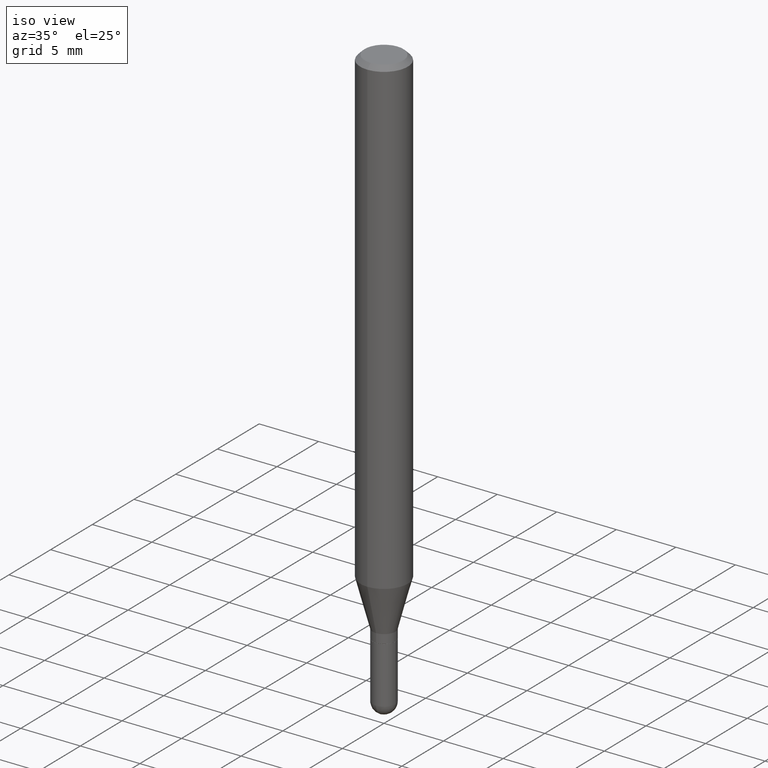
[diagram: clean part render]
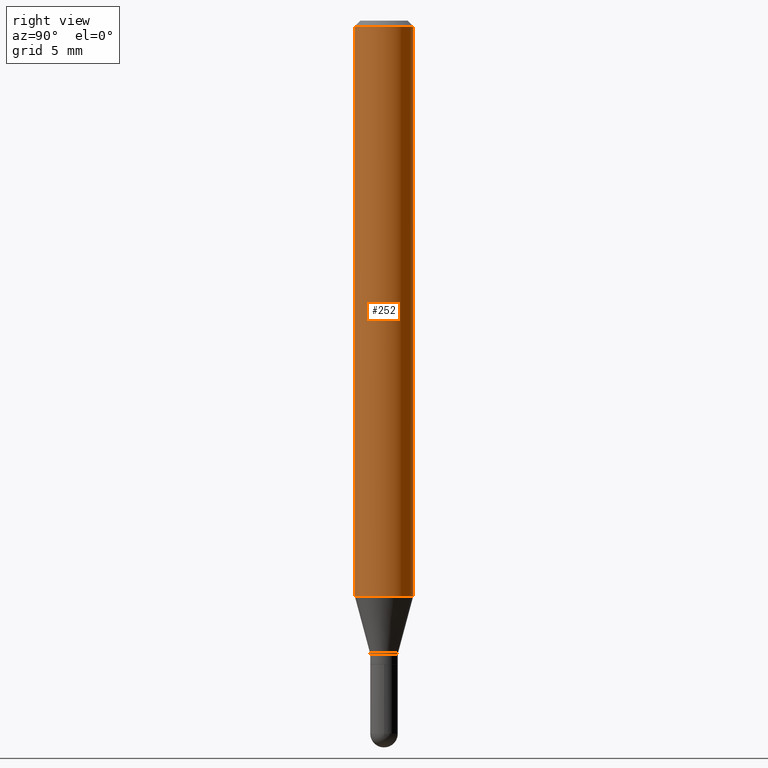
[diagram: tour spotlight — one face highlighted and labeled with its STEP entity id]
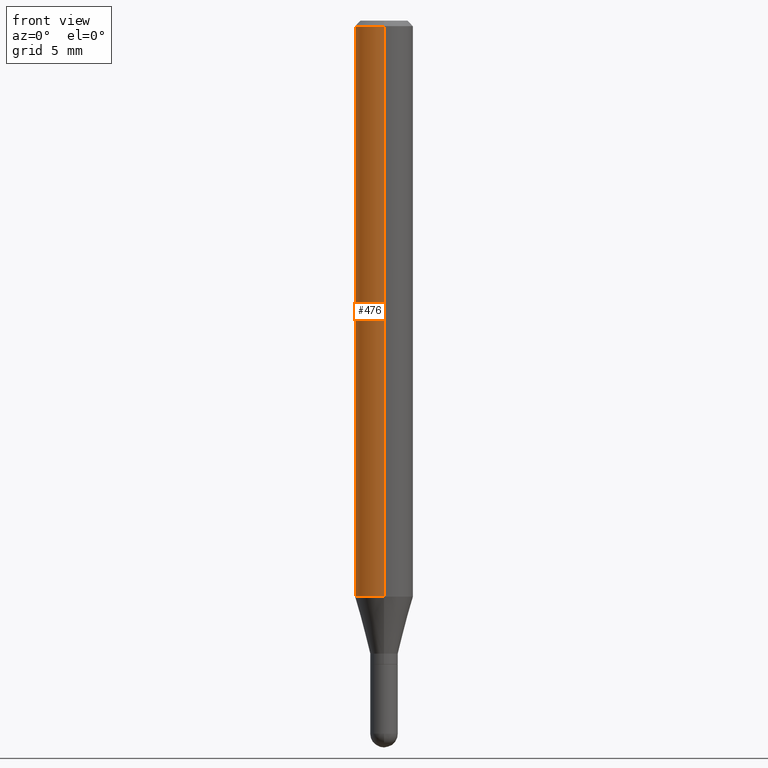
[diagram: tour spotlight — one face highlighted and labeled with its STEP entity id]
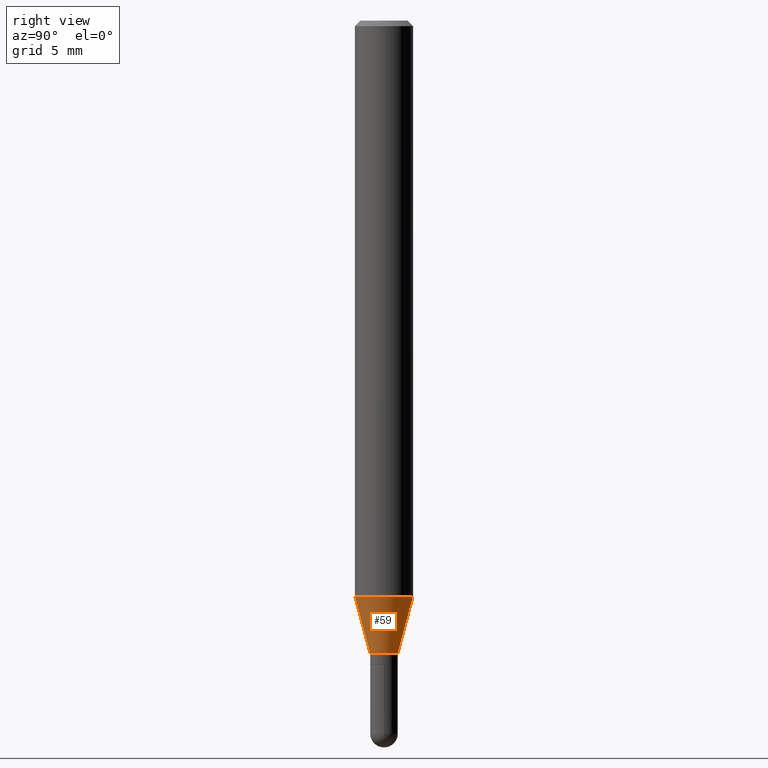
[diagram: tour spotlight — one face highlighted and labeled with its STEP entity id]
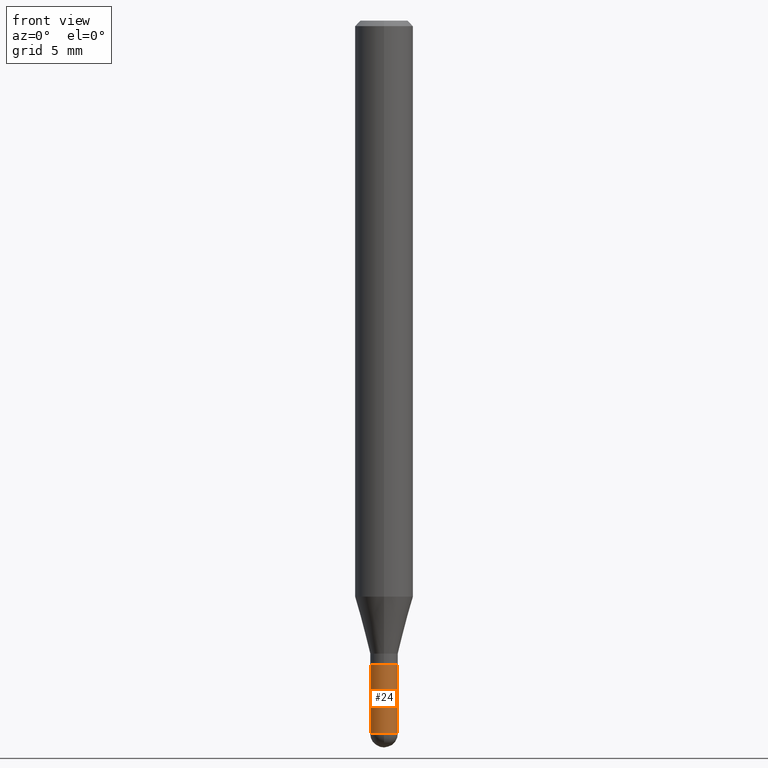
[diagram: tour spotlight — one face highlighted and labeled with its STEP entity id]
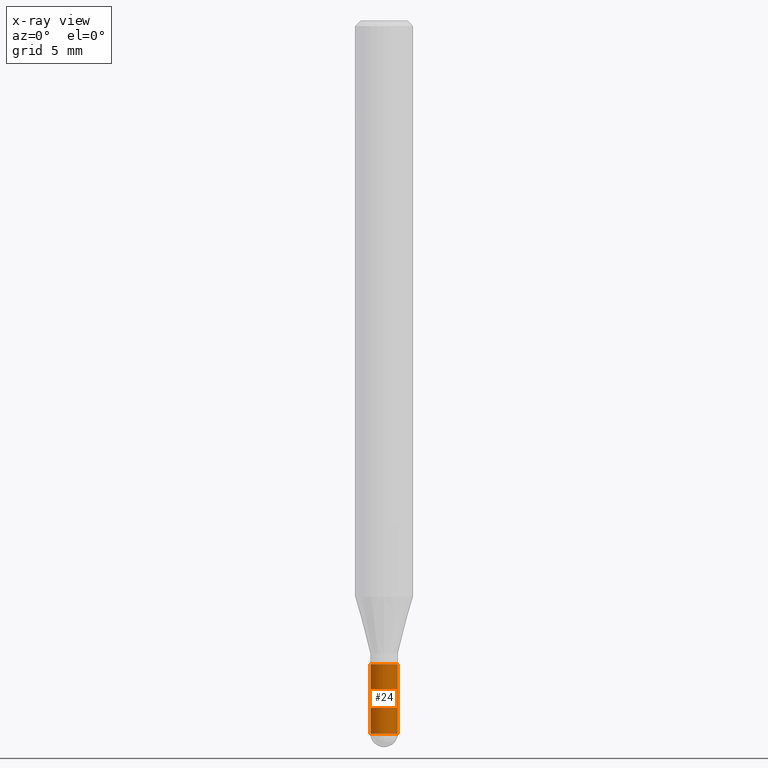
[diagram: x-ray of the same camera — body ghosted, this tour face saturated]
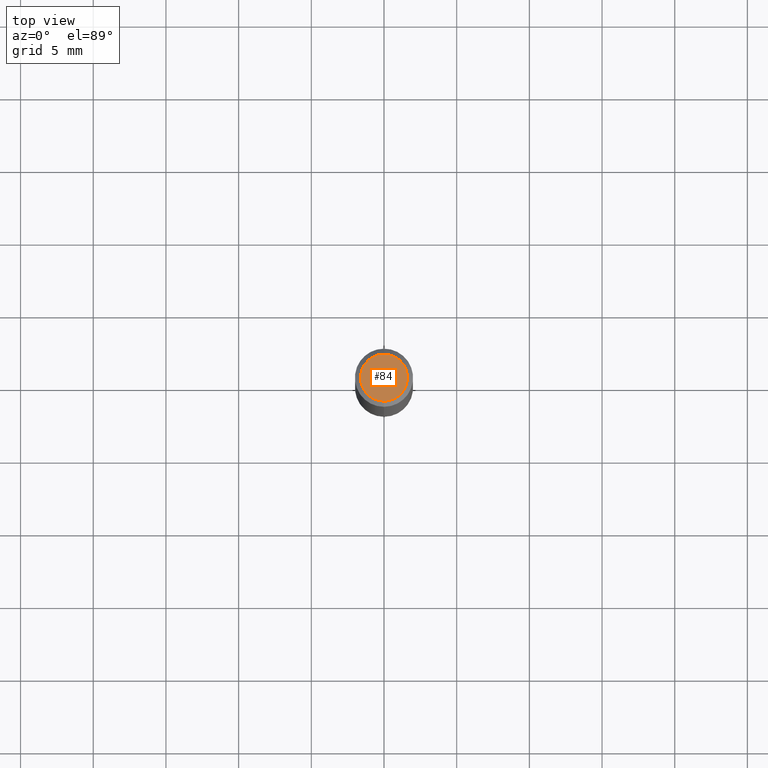
[diagram: tour spotlight — one face highlighted and labeled with its STEP entity id]
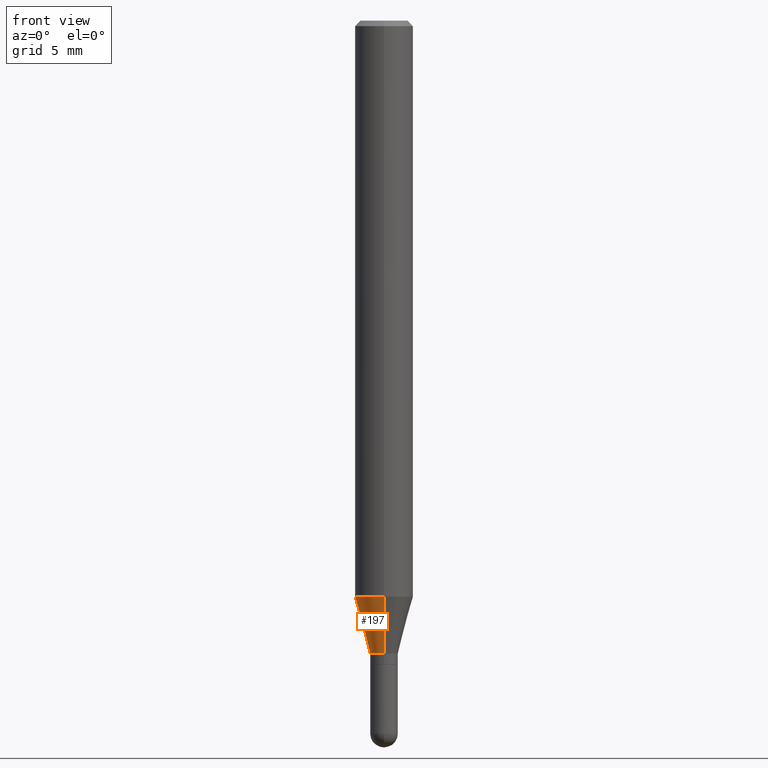
[diagram: tour spotlight — one face highlighted and labeled with its STEP entity id]
A machine part: a face-by-face anatomy tour. The part has 17 B-rep faces; the first image is the clean iso view, then the 6 largest visible faces are spotlighted one at a time (largest first), each with its STEP entity span.

Face 1 — right view, entity #252. In plain terms, the highlighted cylindrical surface (edge-blend (fillet) strip) has radius 2.0002 mm, axis along (-0, 0, 1).
Definition (entity closure, byte-faithful):
#8 = EDGE_CURVE ( 'NONE', #507, #81, #408, .T. ) ;
#20 = ORIENTED_EDGE ( 'NONE', *, *, #8, .F. ) ;
#21 = DIRECTION ( 'NONE',  ( -2.445448542829989062E-29, 3.491510357121035308E-15, 1.000000000000000000 ) ) ;
#57 = DIRECTION ( 'NONE',  ( -2.445448542829989062E-29, 3.491510357121035308E-15, 1.000000000000000000 ) ) ;
#76 = CARTESIAN_POINT ( 'NONE',  ( -5.499083108677930499E-16, -0.07875000000000004219, -0.01499999999999974097 ) ) ;
#81 = VERTEX_POINT ( 'NONE', #345 ) ;
#93 = AXIS2_PLACEMENT_3D ( 'NONE', #356, #57, #101 ) ;
#95 = CARTESIAN_POINT ( 'NONE',  ( 5.595524044110787031E-16, 0.07875000000000000056, -2.749564406232815009E-16 ) ) ;
#100 = DIRECTION ( 'NONE',  ( -2.445448542829989062E-29, 3.491510357121035308E-15, 1.000000000000000000 ) ) ;
#101 = DIRECTION ( 'NONE',  ( -6.982962677686264344E-15, -1.000000000000000000, 3.491510357121034914E-15 ) ) ;
#119 = ORIENTED_EDGE ( 'NONE', *, *, #338, .T. ) ;
#140 = VERTEX_POINT ( 'NONE', #204 ) ;
#144 = AXIS2_PLACEMENT_3D ( 'NONE', #406, #21, #399 ) ;
#148 = LINE ( 'NONE', #95, #407 ) ;
#149 = ORIENTED_EDGE ( 'NONE', *, *, #456, .F. ) ;
#152 = DIRECTION ( 'NONE',  ( -2.445448542829989062E-29, 3.491510357121035308E-15, 1.000000000000000000 ) ) ;
#181 = CYLINDRICAL_SURFACE ( 'NONE', #93, 0.07875000000000000056 ) ;
#185 = CARTESIAN_POINT ( 'NONE',  ( 3.815339171734212769E-29, -5.447383578402168473E-15, -1.560179699107028028 ) ) ;
#188 = DIRECTION ( 'NONE',  ( -6.982962677686264344E-15, -1.000000000000000000, 3.469013325287953293E-15 ) ) ;
#191 = CARTESIAN_POINT ( 'NONE',  ( -5.499083108677933457E-16, -0.07875000000000000056, 2.749564406232815009E-16 ) ) ;
#192 = VERTEX_POINT ( 'NONE', #384 ) ;
#204 = CARTESIAN_POINT ( 'NONE',  ( -5.499083108677556776E-16, -0.07875000000000548228, -1.560179699107027806 ) ) ;
#207 = AXIS2_PLACEMENT_3D ( 'NONE', #185, #152, #188 ) ;
#223 = DIRECTION ( 'NONE',  ( -2.445448542829989062E-29, 3.491510357121035308E-15, 1.000000000000000000 ) ) ;
#230 = LINE ( 'NONE', #191, #474 ) ;
#236 = EDGE_LOOP ( 'NONE', ( #411, #119, #20, #149 ) ) ;
#249 = FACE_OUTER_BOUND ( 'NONE', #236, .T. ) ;
#252 = ADVANCED_FACE ( 'NONE', ( #249 ), #181, .T. ) ;
#262 = EDGE_CURVE ( 'NONE', #140, #192, #468, .T. ) ;
#338 = EDGE_CURVE ( 'NONE', #192, #81, #148, .T. ) ;
#345 = CARTESIAN_POINT ( 'NONE',  ( 5.595524044111170615E-16, 0.07874999999999994504, -0.01500000000000029261 ) ) ;
#356 = CARTESIAN_POINT ( 'NONE',  ( 0.000000000000000000, 0.000000000000000000, 0.000000000000000000 ) ) ;
#384 = CARTESIAN_POINT ( 'NONE',  ( 5.595524044111165684E-16, 0.07874999999999451883, -1.560179699107028473 ) ) ;
#399 = DIRECTION ( 'NONE',  ( -6.982962677686264344E-15, -1.000000000000000000, 3.496114991891765576E-15 ) ) ;
#406 = CARTESIAN_POINT ( 'NONE',  ( 3.668172814244987692E-31, -5.237265535681559618E-17, -0.01500000000000001679 ) ) ;
#407 = VECTOR ( 'NONE', #100, 39.37007874015748143 ) ;
#408 = CIRCLE ( 'NONE', #144, 0.07875000000000000056 ) ;
#411 = ORIENTED_EDGE ( 'NONE', *, *, #262, .T. ) ;
#456 = EDGE_CURVE ( 'NONE', #140, #507, #230, .T. ) ;
#468 = CIRCLE ( 'NONE', #207, 0.07875000000000000056 ) ;
#474 = VECTOR ( 'NONE', #223, 39.37007874015748143 ) ;
#507 = VERTEX_POINT ( 'NONE', #76 ) ;

Face 2 — front view, entity #476. In plain terms, the highlighted cylindrical surface (edge-blend (fillet) strip) has radius 2.0002 mm, axis along (-0, 0, 1).
Definition (entity closure, byte-faithful):
#14 = AXIS2_PLACEMENT_3D ( 'NONE', #263, #334, #336 ) ;
#37 = EDGE_CURVE ( 'NONE', #81, #507, #174, .T. ) ;
#46 = CARTESIAN_POINT ( 'NONE',  ( 3.815339171734212769E-29, -5.447383578402168473E-15, -1.560179699107028028 ) ) ;
#58 = ORIENTED_EDGE ( 'NONE', *, *, #456, .T. ) ;
#76 = CARTESIAN_POINT ( 'NONE',  ( -5.499083108677930499E-16, -0.07875000000000004219, -0.01499999999999974097 ) ) ;
#81 = VERTEX_POINT ( 'NONE', #345 ) ;
#95 = CARTESIAN_POINT ( 'NONE',  ( 5.595524044110787031E-16, 0.07875000000000000056, -2.749564406232815009E-16 ) ) ;
#100 = DIRECTION ( 'NONE',  ( -2.445448542829989062E-29, 3.491510357121035308E-15, 1.000000000000000000 ) ) ;
#118 = AXIS2_PLACEMENT_3D ( 'NONE', #495, #147, #292 ) ;
#129 = AXIS2_PLACEMENT_3D ( 'NONE', #46, #141, #482 ) ;
#133 = EDGE_LOOP ( 'NONE', ( #454, #480, #58, #177 ) ) ;
#140 = VERTEX_POINT ( 'NONE', #204 ) ;
#141 = DIRECTION ( 'NONE',  ( -2.445448542829989062E-29, 3.491510357121035308E-15, 1.000000000000000000 ) ) ;
#147 = DIRECTION ( 'NONE',  ( -2.445448542829989062E-29, 3.491510357121035308E-15, 1.000000000000000000 ) ) ;
#148 = LINE ( 'NONE', #95, #407 ) ;
#174 = CIRCLE ( 'NONE', #118, 0.07875000000000000056 ) ;
#177 = ORIENTED_EDGE ( 'NONE', *, *, #37, .F. ) ;
#191 = CARTESIAN_POINT ( 'NONE',  ( -5.499083108677933457E-16, -0.07875000000000000056, 2.749564406232815009E-16 ) ) ;
#192 = VERTEX_POINT ( 'NONE', #384 ) ;
#196 = CYLINDRICAL_SURFACE ( 'NONE', #14, 0.07875000000000000056 ) ;
#204 = CARTESIAN_POINT ( 'NONE',  ( -5.499083108677556776E-16, -0.07875000000000548228, -1.560179699107027806 ) ) ;
#223 = DIRECTION ( 'NONE',  ( -2.445448542829989062E-29, 3.491510357121035308E-15, 1.000000000000000000 ) ) ;
#230 = LINE ( 'NONE', #191, #474 ) ;
#248 = EDGE_CURVE ( 'NONE', #192, #140, #488, .T. ) ;
#263 = CARTESIAN_POINT ( 'NONE',  ( 0.000000000000000000, 0.000000000000000000, 0.000000000000000000 ) ) ;
#292 = DIRECTION ( 'NONE',  ( -6.982962677686264344E-15, -1.000000000000000000, 3.496114991891765576E-15 ) ) ;
#334 = DIRECTION ( 'NONE',  ( -2.445448542829989062E-29, 3.491510357121035308E-15, 1.000000000000000000 ) ) ;
#336 = DIRECTION ( 'NONE',  ( -6.982962677686264344E-15, -1.000000000000000000, 3.491510357121034914E-15 ) ) ;
#338 = EDGE_CURVE ( 'NONE', #192, #81, #148, .T. ) ;
#345 = CARTESIAN_POINT ( 'NONE',  ( 5.595524044111170615E-16, 0.07874999999999994504, -0.01500000000000029261 ) ) ;
#384 = CARTESIAN_POINT ( 'NONE',  ( 5.595524044111165684E-16, 0.07874999999999451883, -1.560179699107028473 ) ) ;
#407 = VECTOR ( 'NONE', #100, 39.37007874015748143 ) ;
#454 = ORIENTED_EDGE ( 'NONE', *, *, #338, .F. ) ;
#456 = EDGE_CURVE ( 'NONE', #140, #507, #230, .T. ) ;
#474 = VECTOR ( 'NONE', #223, 39.37007874015748143 ) ;
#476 = ADVANCED_FACE ( 'NONE', ( #497 ), #196, .T. ) ;
#480 = ORIENTED_EDGE ( 'NONE', *, *, #248, .T. ) ;
#482 = DIRECTION ( 'NONE',  ( -6.982962677686264344E-15, -1.000000000000000000, 3.469013325287953293E-15 ) ) ;
#488 = CIRCLE ( 'NONE', #129, 0.07875000000000000056 ) ;
#495 = CARTESIAN_POINT ( 'NONE',  ( 3.668172814244987692E-31, -5.237265535681559618E-17, -0.01500000000000001679 ) ) ;
#497 = FACE_OUTER_BOUND ( 'NONE', #133, .T. ) ;
#507 = VERTEX_POINT ( 'NONE', #76 ) ;

Face 3 — right view, entity #59. In plain terms, the highlighted conical surface has half-angle 15 deg.
Definition (entity closure, byte-faithful):
#22 = DIRECTION ( 'NONE',  ( 1.839019923739599921E-15, 0.2588190451025249028, 0.9659258262890670910 ) ) ;
#31 = ORIENTED_EDGE ( 'NONE', *, *, #262, .F. ) ;
#35 = CIRCLE ( 'NONE', #342, 0.03740000000000019698 ) ;
#36 = DIRECTION ( 'NONE',  ( -1.807323732225329745E-15, -0.2588190451025181305, 0.9659258262890689783 ) ) ;
#59 = ADVANCED_FACE ( 'NONE', ( #176 ), #187, .T. ) ;
#60 = AXIS2_PLACEMENT_3D ( 'NONE', #463, #466, #172 ) ;
#63 = EDGE_LOOP ( 'NONE', ( #269, #371, #31, #418 ) ) ;
#88 = EDGE_CURVE ( 'NONE', #500, #140, #428, .T. ) ;
#132 = DIRECTION ( 'NONE',  ( -2.445448542829989062E-29, 3.491510357121035308E-15, 1.000000000000000000 ) ) ;
#140 = VERTEX_POINT ( 'NONE', #204 ) ;
#142 = VECTOR ( 'NONE', #22, 39.37007874015748143 ) ;
#152 = DIRECTION ( 'NONE',  ( -2.445448542829989062E-29, 3.491510357121035308E-15, 1.000000000000000000 ) ) ;
#155 = CARTESIAN_POINT ( 'NONE',  ( 2.657429831743207280E-16, 0.03739999999999420871, -1.714499999999999913 ) ) ;
#172 = DIRECTION ( 'NONE',  ( -6.982962677686265922E-15, -1.000000000000000000, 0.000000000000000000 ) ) ;
#176 = FACE_OUTER_BOUND ( 'NONE', #63, .T. ) ;
#180 = EDGE_CURVE ( 'NONE', #500, #305, #35, .T. ) ;
#185 = CARTESIAN_POINT ( 'NONE',  ( 3.815339171734212769E-29, -5.447383578402168473E-15, -1.560179699107028028 ) ) ;
#187 = CONICAL_SURFACE ( 'NONE', #60, 0.03740000000000019698, 0.2617993877991502405 ) ;
#188 = DIRECTION ( 'NONE',  ( -6.982962677686264344E-15, -1.000000000000000000, 3.469013325287953293E-15 ) ) ;
#192 = VERTEX_POINT ( 'NONE', #384 ) ;
#200 = DIRECTION ( 'NONE',  ( -6.982962677686265922E-15, -1.000000000000000000, 0.000000000000000000 ) ) ;
#204 = CARTESIAN_POINT ( 'NONE',  ( -5.499083108677556776E-16, -0.07875000000000548228, -1.560179699107027806 ) ) ;
#207 = AXIS2_PLACEMENT_3D ( 'NONE', #185, #152, #188 ) ;
#251 = VECTOR ( 'NONE', #36, 39.37007874015748143 ) ;
#262 = EDGE_CURVE ( 'NONE', #140, #192, #468, .T. ) ;
#269 = ORIENTED_EDGE ( 'NONE', *, *, #180, .T. ) ;
#300 = LINE ( 'NONE', #155, #142 ) ;
#305 = VERTEX_POINT ( 'NONE', #489 ) ;
#318 = CARTESIAN_POINT ( 'NONE',  ( 4.192721526682015899E-29, -5.986194507284014547E-15, -1.714499999999999913 ) ) ;
#342 = AXIS2_PLACEMENT_3D ( 'NONE', #318, #132, #200 ) ;
#371 = ORIENTED_EDGE ( 'NONE', *, *, #437, .T. ) ;
#375 = CARTESIAN_POINT ( 'NONE',  ( -2.611628041454257739E-16, -0.03740000000000617830, -1.714499999999999913 ) ) ;
#384 = CARTESIAN_POINT ( 'NONE',  ( 5.595524044111165684E-16, 0.07874999999999451883, -1.560179699107028473 ) ) ;
#418 = ORIENTED_EDGE ( 'NONE', *, *, #88, .F. ) ;
#428 = LINE ( 'NONE', #433, #251 ) ;
#433 = CARTESIAN_POINT ( 'NONE',  ( -2.611628041454257739E-16, -0.03740000000000617830, -1.714499999999999913 ) ) ;
#437 = EDGE_CURVE ( 'NONE', #305, #192, #300, .T. ) ;
#463 = CARTESIAN_POINT ( 'NONE',  ( 4.192721526682015899E-29, -5.986194507284014547E-15, -1.714499999999999913 ) ) ;
#466 = DIRECTION ( 'NONE',  ( -2.445448542829989062E-29, 3.491510357121035308E-15, 1.000000000000000000 ) ) ;
#468 = CIRCLE ( 'NONE', #207, 0.07875000000000000056 ) ;
#489 = CARTESIAN_POINT ( 'NONE',  ( 4.126476937927188208E-16, 0.03739999999999420871, -1.714499999999999913 ) ) ;
#500 = VERTEX_POINT ( 'NONE', #375 ) ;

Face 4 — front view, entity #24. An x-ray twin of the same camera follows (body ghosted, this face saturated) — the face is partly hidden behind the body. In plain terms, the highlighted cylindrical surface (edge-blend (fillet) strip) has radius 0.95 mm, axis along (-0, 0, 1).
Definition (entity closure, byte-faithful):
#1 = CIRCLE ( 'NONE', #398, 0.03739999999999999575 ) ;
#3 = CIRCLE ( 'NONE', #259, 0.03740000000000000269 ) ;
#11 = CARTESIAN_POINT ( 'NONE',  ( 4.265142144867497014E-29, -6.089492603076330929E-15, -1.744100000000000206 ) ) ;
#17 = FACE_OUTER_BOUND ( 'NONE', #412, .T. ) ;
#24 = ADVANCED_FACE ( 'NONE', ( #17 ), #186, .T. ) ;
#39 = ORIENTED_EDGE ( 'NONE', *, *, #366, .F. ) ;
#51 = CARTESIAN_POINT ( 'NONE',  ( -0.03739999999999999575, 2.657429831742774393E-16, -1.839681723755334690E-30 ) ) ;
#61 = CARTESIAN_POINT ( 'NONE',  ( -0.03739999999999999575, -6.150203125083888117E-15, -1.931100000000000039 ) ) ;
#86 = CARTESIAN_POINT ( 'NONE',  ( 4.722444811624117324E-29, -6.742399613439998507E-15, -1.931100000000000039 ) ) ;
#94 = LINE ( 'NONE', #360, #383 ) ;
#97 = CARTESIAN_POINT ( 'NONE',  ( 0.03739999999999999575, -6.677108912403631907E-15, -1.931100000000000039 ) ) ;
#102 = AXIS2_PLACEMENT_3D ( 'NONE', #231, #302, #341 ) ;
#114 = CIRCLE ( 'NONE', #102, 0.03739999999999999575 ) ;
#121 = EDGE_CURVE ( 'NONE', #459, #368, #1, .T. ) ;
#153 = VERTEX_POINT ( 'NONE', #352 ) ;
#154 = DIRECTION ( 'NONE',  ( 1.000000000000000000, -6.982962677686266711E-15, 4.876176775795936353E-29 ) ) ;
#156 = CARTESIAN_POINT ( 'NONE',  ( -2.657429831742302063E-16, -0.03740000000000674035, -1.931100000000000039 ) ) ;
#186 = CYLINDRICAL_SURFACE ( 'NONE', #372, 0.03739999999999999575 ) ;
#214 = DIRECTION ( 'NONE',  ( -2.445468806185136877E-29, 3.491481338843145188E-15, 1.000000000000000000 ) ) ;
#224 = DIRECTION ( 'NONE',  ( -2.445468806185136597E-29, 3.491481338843145583E-15, 1.000000000000000000 ) ) ;
#231 = CARTESIAN_POINT ( 'NONE',  ( 4.722444811624117324E-29, -6.742399613439998507E-15, -1.931100000000000039 ) ) ;
#232 = ORIENTED_EDGE ( 'NONE', *, *, #121, .T. ) ;
#240 = VECTOR ( 'NONE', #214, 39.37007874015748143 ) ;
#242 = DIRECTION ( 'NONE',  ( 1.000000000000000000, -6.982962677686276177E-15, 0.000000000000000000 ) ) ;
#250 = LINE ( 'NONE', #51, #240 ) ;
#259 = AXIS2_PLACEMENT_3D ( 'NONE', #11, #322, #285 ) ;
#270 = DIRECTION ( 'NONE',  ( -2.445468806185136597E-29, 3.491481338843145583E-15, 1.000000000000000000 ) ) ;
#271 = ORIENTED_EDGE ( 'NONE', *, *, #487, .T. ) ;
#285 = DIRECTION ( 'NONE',  ( 1.000000000000000000, -6.982962677686274599E-15, 0.000000000000000000 ) ) ;
#294 = ORIENTED_EDGE ( 'NONE', *, *, #314, .T. ) ;
#302 = DIRECTION ( 'NONE',  ( -2.445468806185136597E-29, 3.491481338843145583E-15, 1.000000000000000000 ) ) ;
#314 = EDGE_CURVE ( 'NONE', #368, #335, #94, .T. ) ;
#322 = DIRECTION ( 'NONE',  ( -2.445468806185136597E-29, 3.491481338843145583E-15, 1.000000000000000000 ) ) ;
#328 = CARTESIAN_POINT ( 'NONE',  ( 0.03740000000000000269, -6.350655407221797329E-15, -1.744100000000000206 ) ) ;
#329 = ORIENTED_EDGE ( 'NONE', *, *, #377, .F. ) ;
#331 = DIRECTION ( 'NONE',  ( -2.445468806185136877E-29, 3.491481338843145188E-15, 1.000000000000000000 ) ) ;
#335 = VERTEX_POINT ( 'NONE', #328 ) ;
#341 = DIRECTION ( 'NONE',  ( 1.000000000000000000, -6.982962677686276177E-15, 0.000000000000000000 ) ) ;
#352 = CARTESIAN_POINT ( 'NONE',  ( -0.03740000000000000269, -6.150203125083888117E-15, -1.744100000000000206 ) ) ;
#360 = CARTESIAN_POINT ( 'NONE',  ( 0.03739999999999999575, -2.611628041454663509E-16, 1.823690114147680082E-30 ) ) ;
#366 = EDGE_CURVE ( 'NONE', #153, #335, #3, .T. ) ;
#368 = VERTEX_POINT ( 'NONE', #97 ) ;
#372 = AXIS2_PLACEMENT_3D ( 'NONE', #496, #224, #154 ) ;
#377 = EDGE_CURVE ( 'NONE', #504, #153, #250, .T. ) ;
#383 = VECTOR ( 'NONE', #331, 39.37007874015748143 ) ;
#398 = AXIS2_PLACEMENT_3D ( 'NONE', #86, #270, #242 ) ;
#412 = EDGE_LOOP ( 'NONE', ( #329, #271, #232, #294, #39 ) ) ;
#459 = VERTEX_POINT ( 'NONE', #156 ) ;
#487 = EDGE_CURVE ( 'NONE', #504, #459, #114, .T. ) ;
#496 = CARTESIAN_POINT ( 'NONE',  ( 0.000000000000000000, 0.000000000000000000, 0.000000000000000000 ) ) ;
#504 = VERTEX_POINT ( 'NONE', #61 ) ;

Face 5 — top view, entity #84. In plain terms, the highlighted planar face has unit normal (0, -0, -1).
Definition (entity closure, byte-faithful):
#7 = CARTESIAN_POINT ( 'NONE',  ( -4.888104823412212925E-16, -0.06374999999999998723, 2.057651113953925439E-16 ) ) ;
#44 = CARTESIAN_POINT ( 'NONE',  ( 4.112920151034929961E-46, -5.872257401389378320E-32, -1.681867387107341630E-17 ) ) ;
#52 = CARTESIAN_POINT ( 'NONE',  ( 4.112920151034929961E-46, -5.872257401389378320E-32, -1.681867387107341630E-17 ) ) ;
#84 = ADVANCED_FACE ( 'NONE', ( #126 ), #431, .F. ) ;
#89 = DIRECTION ( 'NONE',  ( 6.982962677686265922E-15, 1.000000000000000000, -3.491510357121035308E-15 ) ) ;
#107 = DIRECTION ( 'NONE',  ( -6.982962677686265922E-15, -1.000000000000000000, 3.491510357121034914E-15 ) ) ;
#115 = EDGE_LOOP ( 'NONE', ( #494, #158 ) ) ;
#126 = FACE_OUTER_BOUND ( 'NONE', #115, .T. ) ;
#136 = AXIS2_PLACEMENT_3D ( 'NONE', #52, #216, #107 ) ;
#146 = EDGE_CURVE ( 'NONE', #166, #159, #246, .T. ) ;
#158 = ORIENTED_EDGE ( 'NONE', *, *, #146, .T. ) ;
#159 = VERTEX_POINT ( 'NONE', #313 ) ;
#166 = VERTEX_POINT ( 'NONE', #7 ) ;
#206 = CARTESIAN_POINT ( 'NONE',  ( 4.451638707024993845E-16, 0.06374999999999998723, -2.309931222020026776E-16 ) ) ;
#209 = DIRECTION ( 'NONE',  ( -2.445448542829989062E-29, 3.491510357121035308E-15, 1.000000000000000000 ) ) ;
#216 = DIRECTION ( 'NONE',  ( -2.445448542829989062E-29, 3.491510357121035308E-15, 1.000000000000000000 ) ) ;
#227 = CIRCLE ( 'NONE', #136, 0.06374999999999998723 ) ;
#246 = CIRCLE ( 'NONE', #447, 0.06374999999999998723 ) ;
#313 = CARTESIAN_POINT ( 'NONE',  ( 4.975360907851465623E-16, 0.06374999999999998723, -2.394024591375393642E-16 ) ) ;
#339 = AXIS2_PLACEMENT_3D ( 'NONE', #206, #393, #89 ) ;
#393 = DIRECTION ( 'NONE',  ( 2.445448542829988782E-29, -3.491510357121035308E-15, -1.000000000000000000 ) ) ;
#404 = EDGE_CURVE ( 'NONE', #159, #166, #227, .T. ) ;
#431 = PLANE ( 'NONE',  #339 ) ;
#447 = AXIS2_PLACEMENT_3D ( 'NONE', #44, #209, #477 ) ;
#477 = DIRECTION ( 'NONE',  ( -6.982962677686265922E-15, -1.000000000000000000, 3.491510357121034914E-15 ) ) ;
#494 = ORIENTED_EDGE ( 'NONE', *, *, #404, .T. ) ;

Face 6 — front view, entity #197. In plain terms, the highlighted conical surface has half-angle 15 deg.
Definition (entity closure, byte-faithful):
#22 = DIRECTION ( 'NONE',  ( 1.839019923739599921E-15, 0.2588190451025249028, 0.9659258262890670910 ) ) ;
#36 = DIRECTION ( 'NONE',  ( -1.807323732225329745E-15, -0.2588190451025181305, 0.9659258262890689783 ) ) ;
#46 = CARTESIAN_POINT ( 'NONE',  ( 3.815339171734212769E-29, -5.447383578402168473E-15, -1.560179699107028028 ) ) ;
#70 = EDGE_LOOP ( 'NONE', ( #222, #347, #337, #201 ) ) ;
#88 = EDGE_CURVE ( 'NONE', #500, #140, #428, .T. ) ;
#129 = AXIS2_PLACEMENT_3D ( 'NONE', #46, #141, #482 ) ;
#140 = VERTEX_POINT ( 'NONE', #204 ) ;
#141 = DIRECTION ( 'NONE',  ( -2.445448542829989062E-29, 3.491510357121035308E-15, 1.000000000000000000 ) ) ;
#142 = VECTOR ( 'NONE', #22, 39.37007874015748143 ) ;
#155 = CARTESIAN_POINT ( 'NONE',  ( 2.657429831743207280E-16, 0.03739999999999420871, -1.714499999999999913 ) ) ;
#192 = VERTEX_POINT ( 'NONE', #384 ) ;
#197 = ADVANCED_FACE ( 'NONE', ( #316 ), #213, .T. ) ;
#201 = ORIENTED_EDGE ( 'NONE', *, *, #248, .F. ) ;
#203 = DIRECTION ( 'NONE',  ( -6.982962677686265922E-15, -1.000000000000000000, 0.000000000000000000 ) ) ;
#204 = CARTESIAN_POINT ( 'NONE',  ( -5.499083108677556776E-16, -0.07875000000000548228, -1.560179699107027806 ) ) ;
#213 = CONICAL_SURFACE ( 'NONE', #417, 0.03740000000000019698, 0.2617993877991502405 ) ;
#220 = EDGE_CURVE ( 'NONE', #305, #500, #478, .T. ) ;
#222 = ORIENTED_EDGE ( 'NONE', *, *, #437, .F. ) ;
#248 = EDGE_CURVE ( 'NONE', #192, #140, #488, .T. ) ;
#251 = VECTOR ( 'NONE', #36, 39.37007874015748143 ) ;
#300 = LINE ( 'NONE', #155, #142 ) ;
#305 = VERTEX_POINT ( 'NONE', #489 ) ;
#316 = FACE_OUTER_BOUND ( 'NONE', #70, .T. ) ;
#337 = ORIENTED_EDGE ( 'NONE', *, *, #88, .T. ) ;
#347 = ORIENTED_EDGE ( 'NONE', *, *, #220, .T. ) ;
#375 = CARTESIAN_POINT ( 'NONE',  ( -2.611628041454257739E-16, -0.03740000000000617830, -1.714499999999999913 ) ) ;
#384 = CARTESIAN_POINT ( 'NONE',  ( 5.595524044111165684E-16, 0.07874999999999451883, -1.560179699107028473 ) ) ;
#394 = DIRECTION ( 'NONE',  ( -2.445448542829989062E-29, 3.491510357121035308E-15, 1.000000000000000000 ) ) ;
#400 = DIRECTION ( 'NONE',  ( -6.982962677686265922E-15, -1.000000000000000000, 0.000000000000000000 ) ) ;
#417 = AXIS2_PLACEMENT_3D ( 'NONE', #508, #473, #203 ) ;
#428 = LINE ( 'NONE', #433, #251 ) ;
#433 = CARTESIAN_POINT ( 'NONE',  ( -2.611628041454257739E-16, -0.03740000000000617830, -1.714499999999999913 ) ) ;
#437 = EDGE_CURVE ( 'NONE', #305, #192, #300, .T. ) ;
#443 = CARTESIAN_POINT ( 'NONE',  ( 4.192721526682015899E-29, -5.986194507284014547E-15, -1.714499999999999913 ) ) ;
#473 = DIRECTION ( 'NONE',  ( -2.445448542829989062E-29, 3.491510357121035308E-15, 1.000000000000000000 ) ) ;
#478 = CIRCLE ( 'NONE', #499, 0.03740000000000019698 ) ;
#482 = DIRECTION ( 'NONE',  ( -6.982962677686264344E-15, -1.000000000000000000, 3.469013325287953293E-15 ) ) ;
#488 = CIRCLE ( 'NONE', #129, 0.07875000000000000056 ) ;
#489 = CARTESIAN_POINT ( 'NONE',  ( 4.126476937927188208E-16, 0.03739999999999420871, -1.714499999999999913 ) ) ;
#499 = AXIS2_PLACEMENT_3D ( 'NONE', #443, #394, #400 ) ;
#500 = VERTEX_POINT ( 'NONE', #375 ) ;
#508 = CARTESIAN_POINT ( 'NONE',  ( 4.192721526682015899E-29, -5.986194507284014547E-15, -1.714499999999999913 ) ) ;